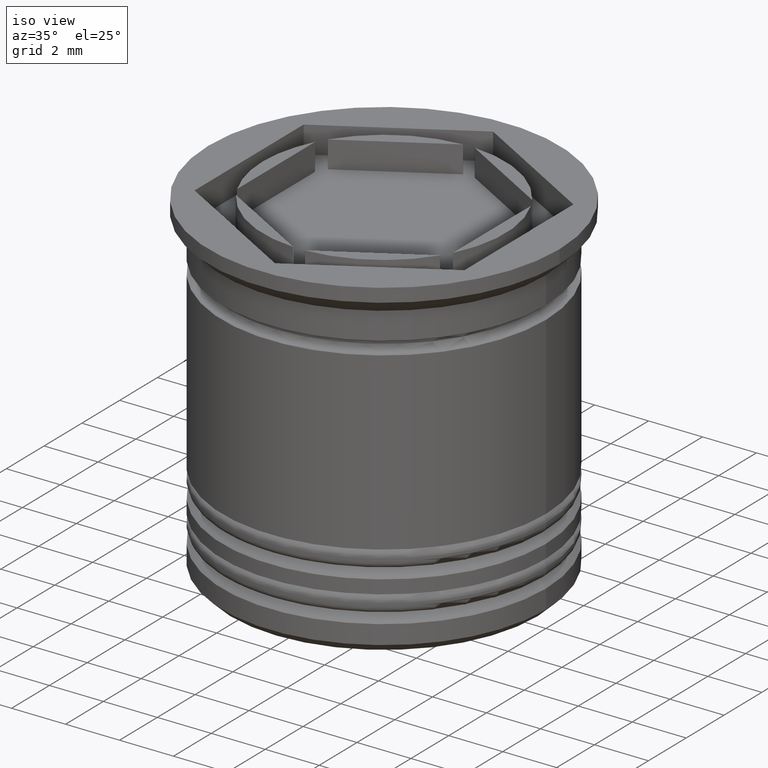
[diagram: clean part render]
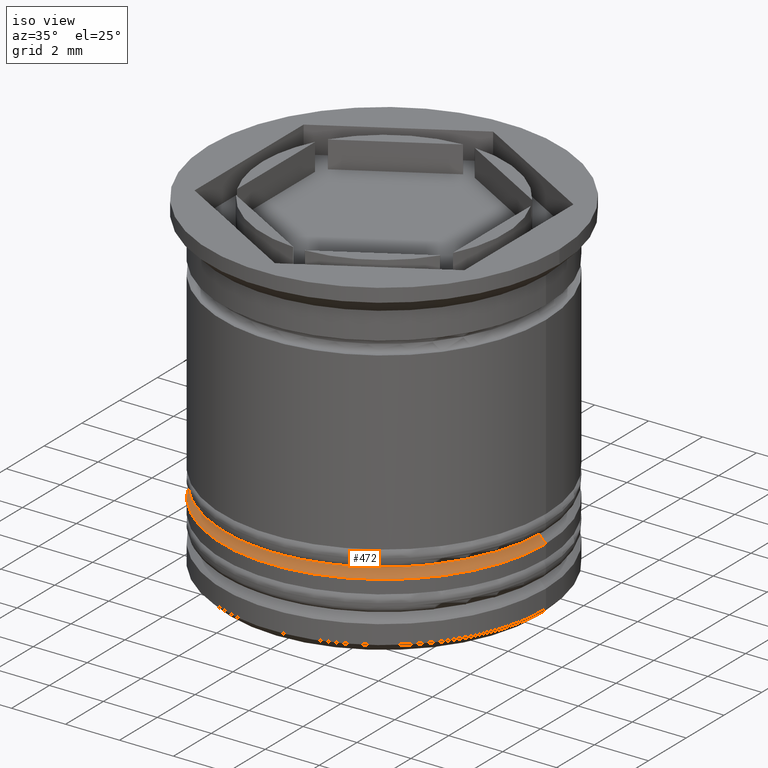
[diagram: same view with one face highlighted and labeled with its STEP entity id]
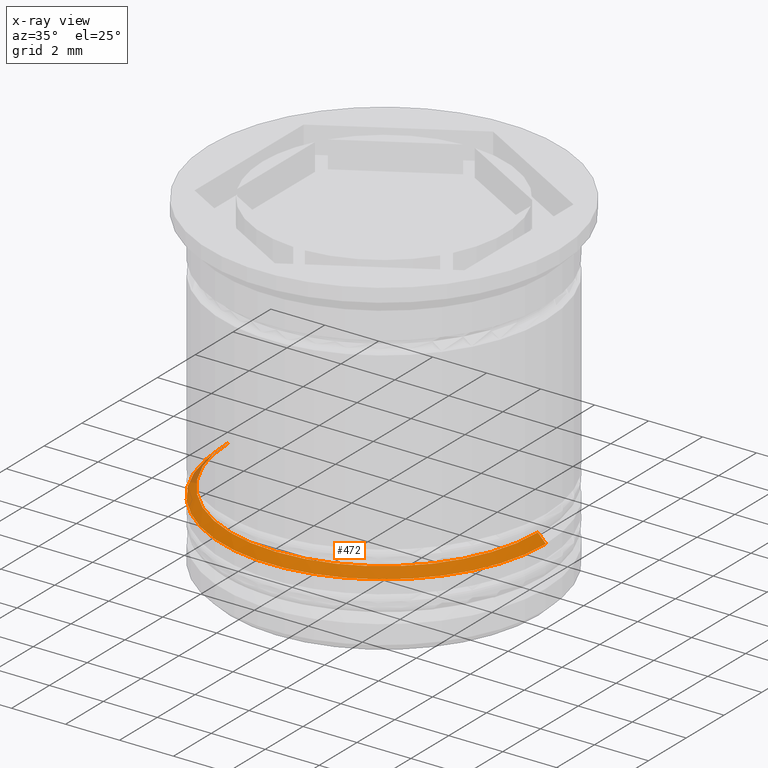
[diagram: x-ray of the same camera — body ghosted, the highlighted face saturated]
A machine part, iso view. The second image highlights one B-rep face of the part: STEP entity #472.
The next image is the same camera in x-ray: the body ghosted, the highlighted face saturated — about 2% of this face is hidden behind the body in this view.
In plain terms, the highlighted conical surface has half-angle 45 deg.
Its self-contained STEP definition (entity closure, byte-faithful):
#253 = LINE ( 'NONE', #1139, #1384 ) ;
#314 = ORIENTED_EDGE ( 'NONE', *, *, #1582, .F. ) ;
#403 = CARTESIAN_POINT ( 'NONE',  ( 0.000000000000000000, 0.000000000000000000, -9.700000000000006395 ) ) ;
#446 = VERTEX_POINT ( 'NONE', #452 ) ;
#452 = CARTESIAN_POINT ( 'NONE',  ( 5.700000000000000178, 0.000000000000000000, -9.700000000000006395 ) ) ;
#472 = ADVANCED_FACE ( 'NONE', ( #1083 ), #1117, .T. ) ;
#517 = CARTESIAN_POINT ( 'NONE',  ( 6.000000000000001776, 0.000000000000000000, -10.00000000000000533 ) ) ;
#520 = AXIS2_PLACEMENT_3D ( 'NONE', #1238, #1557, #1095 ) ;
#531 = DIRECTION ( 'NONE',  ( -1.000000000000000000, 0.000000000000000000, 0.000000000000000000 ) ) ;
#562 = ORIENTED_EDGE ( 'NONE', *, *, #991, .T. ) ;
#601 = EDGE_CURVE ( 'NONE', #1870, #1495, #1807, .T. ) ;
#632 = ORIENTED_EDGE ( 'NONE', *, *, #1555, .F. ) ;
#637 = DIRECTION ( 'NONE',  ( -1.000000000000000000, 0.000000000000000000, 0.000000000000000000 ) ) ;
#782 = DIRECTION ( 'NONE',  ( 0.000000000000000000, 0.000000000000000000, -1.000000000000000000 ) ) ;
#929 = CIRCLE ( 'NONE', #957, 5.700000000000000178 ) ;
#957 = AXIS2_PLACEMENT_3D ( 'NONE', #403, #1006, #531 ) ;
#991 = EDGE_CURVE ( 'NONE', #1012, #1495, #253, .T. ) ;
#1006 = DIRECTION ( 'NONE',  ( -0.000000000000000000, -0.000000000000000000, 1.000000000000000000 ) ) ;
#1011 = CARTESIAN_POINT ( 'NONE',  ( -5.700000000000000178, 6.980486755139913108E-16, -9.700000000000006395 ) ) ;
#1012 = VERTEX_POINT ( 'NONE', #1011 ) ;
#1083 = FACE_OUTER_BOUND ( 'NONE', #1547, .T. ) ;
#1095 = DIRECTION ( 'NONE',  ( -1.000000000000000000, 0.000000000000000000, 0.000000000000000000 ) ) ;
#1117 = CONICAL_SURFACE ( 'NONE', #520, 5.499999999999992895, 0.7853981633974533860 ) ;
#1139 = CARTESIAN_POINT ( 'NONE',  ( -5.499999999999992895, 0.000000000000000000, -9.500000000000001776 ) ) ;
#1177 = DIRECTION ( 'NONE',  ( -0.7071067811865512365, 0.000000000000000000, -0.7071067811865439090 ) ) ;
#1238 = CARTESIAN_POINT ( 'NONE',  ( 0.000000000000000000, 0.000000000000000000, -9.500000000000001776 ) ) ;
#1344 = VECTOR ( 'NONE', #1469, 1000.000000000000000 ) ;
#1384 = VECTOR ( 'NONE', #1177, 1000.000000000000000 ) ;
#1460 = CARTESIAN_POINT ( 'NONE',  ( 5.499999999999992895, 6.735557395310433148E-16, -9.500000000000001776 ) ) ;
#1469 = DIRECTION ( 'NONE',  ( 0.7071067811865512365, 8.659560562354978464E-17, -0.7071067811865439090 ) ) ;
#1495 = VERTEX_POINT ( 'NONE', #1897 ) ;
#1514 = AXIS2_PLACEMENT_3D ( 'NONE', #1540, #782, #637 ) ;
#1540 = CARTESIAN_POINT ( 'NONE',  ( 0.000000000000000000, 0.000000000000000000, -10.00000000000000533 ) ) ;
#1547 = EDGE_LOOP ( 'NONE', ( #632, #314, #562, #1579 ) ) ;
#1555 = EDGE_CURVE ( 'NONE', #446, #1870, #1642, .T. ) ;
#1557 = DIRECTION ( 'NONE',  ( 0.000000000000000000, 0.000000000000000000, -1.000000000000000000 ) ) ;
#1579 = ORIENTED_EDGE ( 'NONE', *, *, #601, .F. ) ;
#1582 = EDGE_CURVE ( 'NONE', #1012, #446, #929, .T. ) ;
#1642 = LINE ( 'NONE', #1460, #1344 ) ;
#1807 = CIRCLE ( 'NONE', #1514, 6.000000000000001776 ) ;
#1870 = VERTEX_POINT ( 'NONE', #517 ) ;
#1897 = CARTESIAN_POINT ( 'NONE',  ( -6.000000000000001776, 7.347880794884121708E-16, -10.00000000000000533 ) ) ;